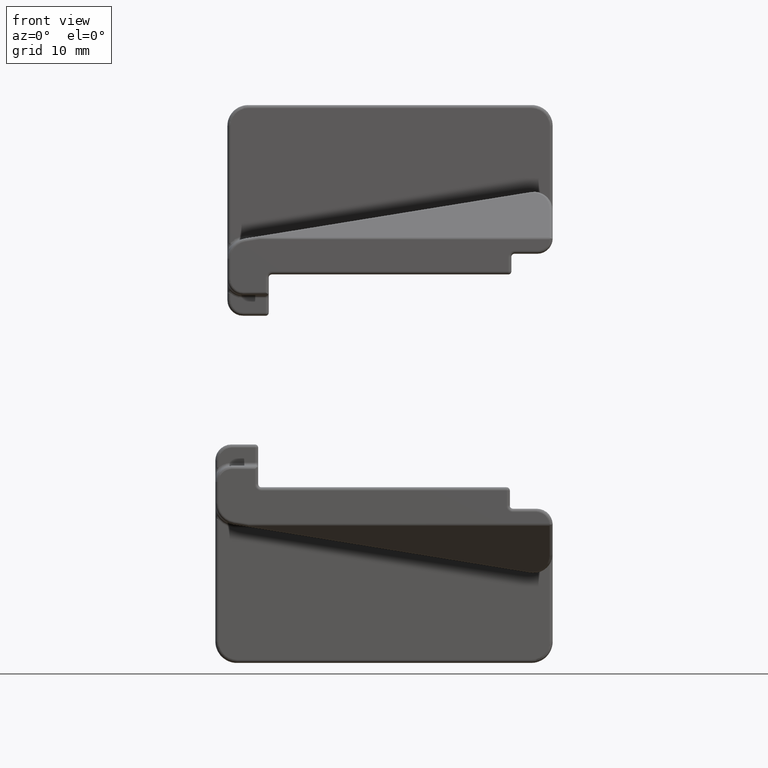
[diagram: clean part render]
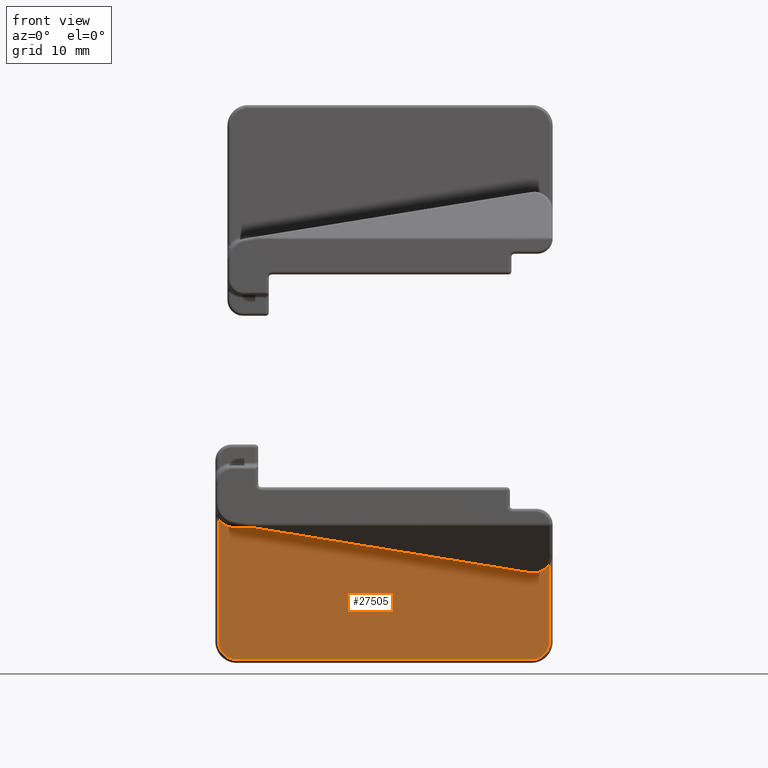
[diagram: same view with one face highlighted and labeled with its STEP entity id]
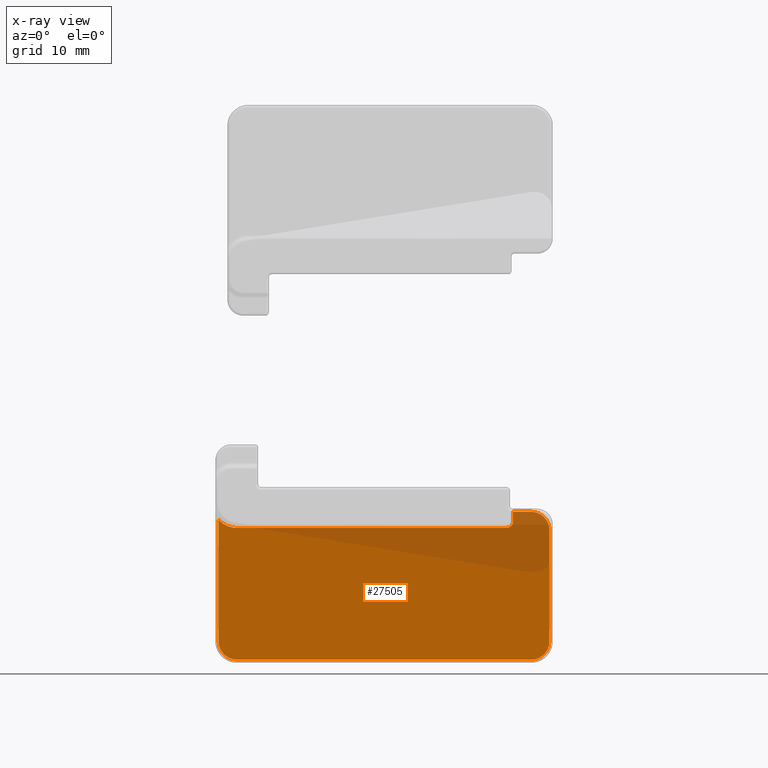
[diagram: x-ray of the same camera — body ghosted, the highlighted face saturated]
A machine part, front view. The second image highlights one B-rep face of the part: STEP entity #27505.
The next image is the same camera in x-ray: the body ghosted, the highlighted face saturated — about 17% of this face is hidden behind the body in this view.
In plain terms, the highlighted planar face has unit normal (-0, 1, -0).
Its self-contained STEP definition (entity closure, byte-faithful):
#59 = CARTESIAN_POINT ( 'NONE',  ( -85.09061913124605800, 47.56520514981311000, -64.85825493301342700 ) ) ;
#116 = EDGE_CURVE ( 'NONE', #4298, #28897, #19156, .T. ) ;
#157 = CARTESIAN_POINT ( 'NONE',  ( -85.41079178492123000, 47.56520517106420700, -65.19786147839050700 ) ) ;
#263 = VECTOR ( 'NONE', #12249, 1000.000000000000000 ) ;
#265 = CARTESIAN_POINT ( 'NONE',  ( -85.69136210871427300, 47.56520518857271200, -65.38312108724174700 ) ) ;
#341 = ORIENTED_EDGE ( 'NONE', *, *, #12700, .F. ) ;
#371 = CARTESIAN_POINT ( 'NONE',  ( -86.11326690694585300, 47.56520515783549300, -65.53784569569337700 ) ) ;
#405 = AXIS2_PLACEMENT_3D ( 'NONE', #1677, #18391, #4103 ) ;
#606 = CARTESIAN_POINT ( 'NONE',  ( -114.5239245589577700, 47.56520507635465100, -65.53763349077704000 ) ) ;
#707 = CARTESIAN_POINT ( 'NONE',  ( -115.3554042313149200, 47.56520507566472800, -65.08208309671115900 ) ) ;
#810 = CARTESIAN_POINT ( 'NONE',  ( -115.5972100838518800, 47.56520529754530500, -64.78164061291809600 ) ) ;
#822 = VERTEX_POINT ( 'NONE', #28807 ) ;
#908 = CARTESIAN_POINT ( 'NONE',  ( -115.7730192352197600, 47.56520508610490300, -64.41062160374940500 ) ) ;
#1019 = B_SPLINE_CURVE_WITH_KNOTS ( 'NONE', 3,
 ( #4867, #19145, #7321, #23917, #9721, #26318, #12151, #28770, #14494, #59, #16820, #2500, #19240, #4967, #21609, #7420, #24023, #9817, #26419, #12262, #28865, #14589, #157, #16920, #2591, #19342, #5077, #21697, #7509, #24127, #9909, #26520, #12359, #28960, #14685, #265, #17019, #2706, #19438, #5178, #21807, #7613, #24239, #10011, #26622, #12455, #29057, #14787, #371, #17113, #2812, #19547 ),
 .UNSPECIFIED., .F., .F.,
 ( 4, 2, 2, 2, 2, 2, 1, 1, 1, 1, 2, 2, 2, 2, 2, 1, 2, 2, 2, 1, 2, 2, 2, 2, 2, 2, 1, 1, 2, 4 ),
 ( 0.0000000000000000000, 0.1249999999987928300, 0.1874999999981892300, 0.2499999999975856500, 0.3749999999963645200, 0.4374999999957539000, 0.4687499999954544700, 0.4843749999953097500, 0.4921874999952322000, 0.4960937499951881800, 0.4980468749951660900, 0.4999999999951440000, 0.5624999999955190300, 0.5703124999955622200, 0.5781249999956052900, 0.5937499999957002200, 0.6249999999958868500, 0.6406249999959908700, 0.6445312499960147400, 0.6484374999960386100, 0.6562499999960974600, 0.6874999999963397100, 0.7499999999968343100, 0.7812499999970816700, 0.7851562499971224100, 0.7890624999971632700, 0.7968749999972600800, 0.8124999999974740200, 0.8749999999983160100, 1.000000000000000000 ),
 .UNSPECIFIED. ) ;
#1375 = DIRECTION ( 'NONE',  ( 0.0000000000000000000, 0.0000000000000000000, 1.000000000000000000 ) ) ;
#1378 = CARTESIAN_POINT ( 'NONE',  ( -85.74202961035679500, 47.56520516209154400, -51.86095275907231200 ) ) ;
#1431 = DIRECTION ( 'NONE',  ( 0.9870745525982588300, 0.0000000000000000000, -0.1602617471917339700 ) ) ;
#1482 = CARTESIAN_POINT ( 'NONE',  ( -85.23563104423415400, 47.56520504921714800, -52.23447866862385100 ) ) ;
#1599 = CARTESIAN_POINT ( 'NONE',  ( -85.01139370132911200, 47.56520525104075900, -52.53861296022482500 ) ) ;
#1677 = CARTESIAN_POINT ( 'NONE',  ( -114.2891290886186800, 47.56520507557525700, -52.60051073726586400 ) ) ;
#1704 = CARTESIAN_POINT ( 'NONE',  ( -84.85323768697945500, 47.56520509895901200, -52.89643762875896000 ) ) ;
#1780 = ORIENTED_EDGE ( 'NONE', *, *, #16103, .T. ) ;
#1894 = DIRECTION ( 'NONE',  ( 0.0000000000000000000, 0.0000000000000000000, 1.000000000000000000 ) ) ;
#2500 = CARTESIAN_POINT ( 'NONE',  ( -85.17934918512475000, 47.56520510275998200, -64.97143189718065100 ) ) ;
#2591 = CARTESIAN_POINT ( 'NONE',  ( -85.43580123714461600, 47.56520521144607000, -65.21770686579424100 ) ) ;
#2706 = CARTESIAN_POINT ( 'NONE',  ( -85.83664551648583100, 47.56520510587556300, -65.45180597223891500 ) ) ;
#2812 = CARTESIAN_POINT ( 'NONE',  ( -86.37884651886561500, 47.56520507557528500, -65.57807062696493000 ) ) ;
#3038 = CARTESIAN_POINT ( 'NONE',  ( -114.6792488385710300, 47.56520508526954700, -65.49532393897686700 ) ) ;
#3145 = CARTESIAN_POINT ( 'NONE',  ( -115.3603918401506300, 47.56520507557528500, -65.07710500160885700 ) ) ;
#3233 = VECTOR ( 'NONE', #1431, 1000.000000000000100 ) ;
#3247 = CARTESIAN_POINT ( 'NONE',  ( -115.6084326712006000, 47.56520528005182800, -64.76353419017503700 ) ) ;
#3347 = CARTESIAN_POINT ( 'NONE',  ( -115.7748036427372300, 47.56520508790543300, -64.40529322591581300 ) ) ;
#3433 = CIRCLE ( 'NONE', #17127, 0.6035999999999819300 ) ;
#3819 = CARTESIAN_POINT ( 'NONE',  ( -85.49565342320963200, 47.56520515009972900, -52.00973167892012600 ) ) ;
#3912 = CARTESIAN_POINT ( 'NONE',  ( -85.15604753482986700, 47.56520517106337600, -52.32990414256617100 ) ) ;
#4025 = CARTESIAN_POINT ( 'NONE',  ( -84.97078751019327600, 47.56520518857270500, -52.61047498325754600 ) ) ;
#4103 = DIRECTION ( 'NONE',  ( 0.0000000000000000000, 0.0000000000000000000, 1.000000000000000000 ) ) ;
#4132 = CARTESIAN_POINT ( 'NONE',  ( -84.81606289874993400, 47.56520515783545700, -53.03237978706452800 ) ) ;
#4298 = VERTEX_POINT ( 'NONE', #17713 ) ;
#4867 = CARTESIAN_POINT ( 'NONE',  ( -84.77599785715634100, 47.56520507557527100, -63.86771073726553300 ) ) ;
#4967 = CARTESIAN_POINT ( 'NONE',  ( -85.24173790019503400, 47.56520507931411100, -65.04101354351007600 ) ) ;
#5077 = CARTESIAN_POINT ( 'NONE',  ( -85.49007896449859300, 47.56520529185763000, -65.25887081759334800 ) ) ;
#5146 = ORIENTED_EDGE ( 'NONE', *, *, #17590, .F. ) ;
#5178 = CARTESIAN_POINT ( 'NONE',  ( -85.93044695492179100, 47.56520508680058900, -65.48525179463115400 ) ) ;
#5319 = ORIENTED_EDGE ( 'NONE', *, *, #25111, .F. ) ;
#5342 = CARTESIAN_POINT ( 'NONE',  ( -88.19639785715634200, 47.56520507557526400, -52.90231073726553000 ) ) ;
#5394 = DIRECTION ( 'NONE',  ( -0.0000000000000000000, -1.123699740989531100E-016, -1.000000000000000000 ) ) ;
#5513 = CARTESIAN_POINT ( 'NONE',  ( -114.8953659352826800, 47.56520516180526700, -65.41206834280586700 ) ) ;
#5629 = CARTESIAN_POINT ( 'NONE',  ( -115.4017675169201600, 47.56520504922042400, -65.03853953017711800 ) ) ;
#5728 = CARTESIAN_POINT ( 'NONE',  ( -115.6260020132478400, 47.56520525104075900, -64.73440851385777300 ) ) ;
#5829 = CARTESIAN_POINT ( 'NONE',  ( -84.77599785715634100, 47.56520507557526400, -52.90231073726553000 ) ) ;
#5832 = CARTESIAN_POINT ( 'NONE',  ( -115.7841580273373700, 47.56520509895900500, -64.37658384578205100 ) ) ;
#5971 = DIRECTION ( 'NONE',  ( 0.0000000000000000000, 1.123699740989531100E-016, 1.000000000000000000 ) ) ;
#5982 = ORIENTED_EDGE ( 'NONE', *, *, #21611, .F. ) ;
#6188 = CARTESIAN_POINT ( 'NONE',  ( -86.37888934310738900, 47.56520507557526400, -51.69517638808132200 ) ) ;
#6291 = CARTESIAN_POINT ( 'NONE',  ( -85.38247653138677200, 47.56520510286741700, -52.09846187089495100 ) ) ;
#6342 = VERTEX_POINT ( 'NONE', #13158 ) ;
#6345 = VECTOR ( 'NONE', #5394, 1000.000000000000000 ) ;
#6402 = CARTESIAN_POINT ( 'NONE',  ( -85.13620172823873100, 47.56520521144607000, -52.35491411774965800 ) ) ;
#6509 = CARTESIAN_POINT ( 'NONE',  ( -84.90210262679401900, 47.56520510587554900, -52.75575838567418400 ) ) ;
#6623 = CARTESIAN_POINT ( 'NONE',  ( -84.77583796747576600, 47.56520507557526400, -53.29795939897604000 ) ) ;
#7085 = VERTEX_POINT ( 'NONE', #13491 ) ;
#7282 = CIRCLE ( 'NONE', #30304, 2.313799999999956100 ) ;
#7297 = EDGE_LOOP ( 'NONE', ( #27550, #341, #28818, #15101, #13859, #5319, #7904, #12454, #1780, #30284, #22987, #5146, #5982 ) ) ;
#7314 = CARTESIAN_POINT ( 'NONE',  ( -86.48619785715632700, 47.56520507557526400, -51.69511073726551600 ) ) ;
#7321 = CARTESIAN_POINT ( 'NONE',  ( -84.78620705888545200, 47.56520508428882000, -64.08231301596885000 ) ) ;
#7420 = CARTESIAN_POINT ( 'NONE',  ( -85.26802730539381500, 47.56520507582418100, -65.06809082732866000 ) ) ;
#7509 = CARTESIAN_POINT ( 'NONE',  ( -85.56068085969872100, 47.56520530450869400, -65.30634507333577700 ) ) ;
#7590 = VERTEX_POINT ( 'NONE', #27730 ) ;
#7613 = CARTESIAN_POINT ( 'NONE',  ( -85.94296580053800500, 47.56520508606065100, -65.48942442152842600 ) ) ;
#7628 = CIRCLE ( 'NONE', #405, 0.6035999999996697300 ) ;
#7904 = ORIENTED_EDGE ( 'NONE', *, *, #21393, .F. ) ;
#7947 = CARTESIAN_POINT ( 'NONE',  ( -115.1417420528978800, 47.56520514981311000, -65.26328946317428900 ) ) ;
#8060 = CARTESIAN_POINT ( 'NONE',  ( -115.4813485988289600, 47.56520517106420700, -64.94311680881337200 ) ) ;
#8162 = CARTESIAN_POINT ( 'NONE',  ( -115.6666082049125500, 47.56520518857271900, -64.66254648980621800 ) ) ;
#8260 = CARTESIAN_POINT ( 'NONE',  ( -115.8213328155783900, 47.56520515783548600, -64.24064168747611300 ) ) ;
#8418 = EDGE_CURVE ( 'NONE', #29898, #9692, #9383, .T. ) ;
#8484 = CARTESIAN_POINT ( 'NONE',  ( -115.8613978571563300, 47.56520507557526400, -52.90231073726553000 ) ) ;
#8700 = CARTESIAN_POINT ( 'NONE',  ( -85.31289498064175800, 47.56520507932902600, -52.16085070678086300 ) ) ;
#8816 = CARTESIAN_POINT ( 'NONE',  ( -85.09503777502845900, 47.56520529185763700, -52.40919184707649200 ) ) ;
#8836 = CARTESIAN_POINT ( 'NONE',  ( -114.2891290886186800, 47.56520507557526400, -53.20411073726552300 ) ) ;
#8919 = CARTESIAN_POINT ( 'NONE',  ( -84.86865680194304700, 47.56520508680057400, -52.84955982875206400 ) ) ;
#9151 = CARTESIAN_POINT ( 'NONE',  ( -114.3858630792236100, 47.56520507557526400, -53.19630893721383600 ) ) ;
#9383 = LINE ( 'NONE', #8484, #263 ) ;
#9683 = LINE ( 'NONE', #18144, #3233 ) ;
#9692 = VERTEX_POINT ( 'NONE', #11061 ) ;
#9703 = DIRECTION ( 'NONE',  ( -0.0000000000000000000, 1.000000000000000000, -1.123699740989531100E-016 ) ) ;
#9721 = CARTESIAN_POINT ( 'NONE',  ( -84.82876776238387600, 47.56520507256401200, -64.29267662479777800 ) ) ;
#9817 = CARTESIAN_POINT ( 'NONE',  ( -85.27436165227295800, 47.56520507559343300, -65.07446394957084100 ) ) ;
#9909 = CARTESIAN_POINT ( 'NONE',  ( -85.58662439494521800, 47.56520528402881400, -65.32262532499829900 ) ) ;
#10010 = EDGE_CURVE ( 'NONE', #7085, #822, #18740, .T. ) ;
#10011 = CARTESIAN_POINT ( 'NONE',  ( -85.94375523268456600, 47.56520508623377500, -65.48968929887854500 ) ) ;
#10339 = CARTESIAN_POINT ( 'NONE',  ( -115.2549190170678900, 47.56520510275998200, -65.17455940929626500 ) ) ;
#10445 = CARTESIAN_POINT ( 'NONE',  ( -115.5011939855245400, 47.56520521144607000, -64.91810735748342200 ) ) ;
#10534 = CARTESIAN_POINT ( 'NONE',  ( -115.7352930887416100, 47.56520510587555600, -64.51726308596236900 ) ) ;
#10636 = CARTESIAN_POINT ( 'NONE',  ( -115.8615577468506100, 47.56520507557527100, -63.97506207555667100 ) ) ;
#10888 = CARTESIAN_POINT ( 'NONE',  ( -86.48619785715634100, 47.56520507557526400, -65.57791073726551200 ) ) ;
#11011 = CARTESIAN_POINT ( 'NONE',  ( -86.27159562005246600, 47.56520508436628300, -51.70532025123731000 ) ) ;
#11061 = CARTESIAN_POINT ( 'NONE',  ( -115.8613978571563200, 47.56520507557526400, -52.44879923577939000 ) ) ;
#11115 = CARTESIAN_POINT ( 'NONE',  ( -85.28581774844042200, 47.56520507582516200, -52.18714016671839300 ) ) ;
#11222 = CARTESIAN_POINT ( 'NONE',  ( -85.04756352016936200, 47.56520530450867300, -52.47979374123103500 ) ) ;
#11315 = CARTESIAN_POINT ( 'NONE',  ( -84.86448417319796500, 47.56520508606062200, -52.86207867974836500 ) ) ;
#11379 = VERTEX_POINT ( 'NONE', #9151 ) ;
#11655 = VERTEX_POINT ( 'NONE', #7314 ) ;
#12151 = CARTESIAN_POINT ( 'NONE',  ( -84.87763005565486200, 47.56520510625529900, -64.45173126419869900 ) ) ;
#12249 = DIRECTION ( 'NONE',  ( 0.0000000000000000000, 1.123699740989531100E-016, 1.000000000000000000 ) ) ;
#12262 = CARTESIAN_POINT ( 'NONE',  ( -85.28011174543949800, 47.56520507557527800, -65.08020584497907600 ) ) ;
#12359 = CARTESIAN_POINT ( 'NONE',  ( -85.60209312265448000, 47.56520526818420100, -65.33207284589518300 ) ) ;
#12402 = VECTOR ( 'NONE', #16283, 1000.000000000000000 ) ;
#12454 = ORIENTED_EDGE ( 'NONE', *, *, #22739, .F. ) ;
#12455 = CARTESIAN_POINT ( 'NONE',  ( -85.95817263583977300, 47.56520509138808000, -65.49447244471902300 ) ) ;
#12700 = EDGE_CURVE ( 'NONE', #11655, #4298, #24331, .T. ) ;
#12773 = CARTESIAN_POINT ( 'NONE',  ( -115.3245006633994900, 47.56520507931410400, -65.11217069422654900 ) ) ;
#12829 = LINE ( 'NONE', #14375, #19074 ) ;
#12870 = CARTESIAN_POINT ( 'NONE',  ( -115.5423579367343100, 47.56520529185763000, -64.86382963096234300 ) ) ;
#12985 = CARTESIAN_POINT ( 'NONE',  ( -115.7687389129414900, 47.56520508680057400, -64.42346164411675600 ) ) ;
#13045 = VERTEX_POINT ( 'NONE', #10888 ) ;
#13158 = CARTESIAN_POINT ( 'NONE',  ( -114.5220114878086400, 47.56520507557527100, -53.17420383706736700 ) ) ;
#13175 = CARTESIAN_POINT ( 'NONE',  ( -114.1511978571563500, 47.56520507557527100, -65.57791073726552600 ) ) ;
#13415 = CARTESIAN_POINT ( 'NONE',  ( -86.06123201278568000, 47.56520507254865700, -51.74788080118277400 ) ) ;
#13491 = CARTESIAN_POINT ( 'NONE',  ( -88.19639785715635600, 47.56520507557526400, -52.60051073726553000 ) ) ;
#13511 = CARTESIAN_POINT ( 'NONE',  ( -85.27944463944328400, 47.56520507559348900, -52.19347452698756500 ) ) ;
#13606 = CARTESIAN_POINT ( 'NONE',  ( -85.03128326933436700, 47.56520528402880600, -52.50573727519471800 ) ) ;
#13718 = CARTESIAN_POINT ( 'NONE',  ( -84.86421929547115900, 47.56520508623376000, -52.86286811301585000 ) ) ;
#13859 = ORIENTED_EDGE ( 'NONE', *, *, #24241, .F. ) ;
#13953 = FACE_OUTER_BOUND ( 'NONE', #7297, .T. ) ;
#14375 = CARTESIAN_POINT ( 'NONE',  ( -84.47419785715634100, 47.56520507557526400, -53.20411073726552300 ) ) ;
#14494 = CARTESIAN_POINT ( 'NONE',  ( -84.99549925351679700, 47.56520518214936300, -64.71429611798151900 ) ) ;
#14573 = CARTESIAN_POINT ( 'NONE',  ( -84.47419785715634100, 47.56520507557526400, -51.69511073726552300 ) ) ;
#14589 = CARTESIAN_POINT ( 'NONE',  ( -85.40066370695208800, 47.56520515679808600, -65.18957003293938600 ) ) ;
#14685 = CARTESIAN_POINT ( 'NONE',  ( -85.63637452903721200, 47.56520523576712400, -65.35223343124199900 ) ) ;
#14787 = CARTESIAN_POINT ( 'NONE',  ( -86.04794748601294400, 47.56520513140805000, -65.52214691758493400 ) ) ;
#14889 = CARTESIAN_POINT ( 'NONE',  ( -114.1511978571563500, 47.56520507557527100, -65.57791073726552600 ) ) ;
#14990 = CARTESIAN_POINT ( 'NONE',  ( -114.3658001358545800, 47.56520508428881300, -65.56770153553635800 ) ) ;
#15095 = CARTESIAN_POINT ( 'NONE',  ( -115.3515779472191000, 47.56520507582417400, -65.08588128902802300 ) ) ;
#15097 = CARTESIAN_POINT ( 'NONE',  ( -115.8613978571563300, 47.56520507557526400, -63.86771073726553300 ) ) ;
#15101 = ORIENTED_EDGE ( 'NONE', *, *, #10010, .F. ) ;
#15203 = CARTESIAN_POINT ( 'NONE',  ( -115.5898321928462900, 47.56520530450870200, -64.79322773532014400 ) ) ;
#15300 = CARTESIAN_POINT ( 'NONE',  ( -115.7729115411957000, 47.56520508606064400, -64.41094279455104800 ) ) ;
#15723 = DIRECTION ( 'NONE',  ( 0.0000000000000000000, 1.000000000000000000, -0.0000000000000000000 ) ) ;
#15728 = CARTESIAN_POINT ( 'NONE',  ( -85.90217727651261700, 47.56520510632227400, -51.79674278113370200 ) ) ;
#15838 = CARTESIAN_POINT ( 'NONE',  ( -85.27370547684182600, 47.56520507557527100, -52.19922190601083400 ) ) ;
#15932 = CARTESIAN_POINT ( 'NONE',  ( -85.02183574898266700, 47.56520526818417900, -52.52120600200930800 ) ) ;
#16041 = CARTESIAN_POINT ( 'NONE',  ( -84.85943614970537400, 47.56520509138805900, -52.87728551595672900 ) ) ;
#16103 = EDGE_CURVE ( 'NONE', #6342, #9692, #7282, .T. ) ;
#16232 = DIRECTION ( 'NONE',  ( -0.0000000000000000000, -1.000000000000000000, -0.0000000000000000000 ) ) ;
#16283 = DIRECTION ( 'NONE',  ( -1.000000000000000000, -0.0000000000000000000, 0.0000000000000000000 ) ) ;
#16820 = CARTESIAN_POINT ( 'NONE',  ( -85.12475753706600300, 47.56520513059916800, -64.90463339155144200 ) ) ;
#16920 = CARTESIAN_POINT ( 'NONE',  ( -85.43240868610753600, 47.56520520549997900, -65.21510225631361400 ) ) ;
#17019 = CARTESIAN_POINT ( 'NONE',  ( -85.73129023108066300, 47.56520516260594900, -65.40302377417924600 ) ) ;
#17113 = CARTESIAN_POINT ( 'NONE',  ( -86.27146692806240900, 47.56520516741107900, -65.56800720699162400 ) ) ;
#17127 = AXIS2_PLACEMENT_3D ( 'NONE', #30518, #16232, #1894 ) ;
#17322 = EDGE_CURVE ( 'NONE', #24790, #29898, #23966, .T. ) ;
#17336 = CARTESIAN_POINT ( 'NONE',  ( -114.5761637446780700, 47.56520507256400500, -65.52514083203796200 ) ) ;
#17430 = CARTESIAN_POINT ( 'NONE',  ( -115.3579510694615400, 47.56520507559343300, -65.07954694214890900 ) ) ;
#17531 = CARTESIAN_POINT ( 'NONE',  ( -115.6061124448542500, 47.56520528402883500, -64.76728419953198600 ) ) ;
#17590 = EDGE_CURVE ( 'NONE', #13045, #24790, #19386, .T. ) ;
#17635 = CARTESIAN_POINT ( 'NONE',  ( -115.7731764188224000, 47.56520508623376700, -64.41015336158167800 ) ) ;
#17713 = CARTESIAN_POINT ( 'NONE',  ( -84.77599785715634100, 47.56520507557526400, -53.40531073726553000 ) ) ;
#18096 = CARTESIAN_POINT ( 'NONE',  ( -85.63961224037200300, 47.56520518254333800, -51.91461172617047700 ) ) ;
#18144 = CARTESIAN_POINT ( 'NONE',  ( -114.5220114878086400, 47.56520507557526400, -53.17420383706736700 ) ) ;
#18198 = CARTESIAN_POINT ( 'NONE',  ( -85.16433924826861800, 47.56520515679687100, -52.31977574911412900 ) ) ;
#18235 = VECTOR ( 'NONE', #5971, 1000.000000000000000 ) ;
#18308 = CARTESIAN_POINT ( 'NONE',  ( -85.00167516470989400, 47.56520523576711000, -52.55548740648698900 ) ) ;
#18391 = DIRECTION ( 'NONE',  ( -0.0000000000000000000, -1.000000000000000000, -0.0000000000000000000 ) ) ;
#18419 = CARTESIAN_POINT ( 'NONE',  ( -84.83176167685289200, 47.56520513140800000, -52.96706036613222300 ) ) ;
#18740 = LINE ( 'NONE', #5342, #18235 ) ;
#19074 = VECTOR ( 'NONE', #28639, 1000.000000000000000 ) ;
#19145 = CARTESIAN_POINT ( 'NONE',  ( -84.77606327918346100, 47.56520507557528500, -63.97501925028589700 ) ) ;
#19156 = LINE ( 'NONE', #5829, #6345 ) ;
#19240 = CARTESIAN_POINT ( 'NONE',  ( -85.20749044424667300, 47.56520508927708600, -65.00413926972414900 ) ) ;
#19342 = CARTESIAN_POINT ( 'NONE',  ( -85.45394142680244400, 47.56520523982619900, -65.23172811984603900 ) ) ;
#19386 = LINE ( 'NONE', #30574, #12402 ) ;
#19438 = CARTESIAN_POINT ( 'NONE',  ( -85.88745811469598800, 47.56520509489941200, -65.47008172342096100 ) ) ;
#19547 = CARTESIAN_POINT ( 'NONE',  ( -86.48619785715634100, 47.56520507557526400, -65.57791073726551200 ) ) ;
#19755 = CARTESIAN_POINT ( 'NONE',  ( -114.7352183840774700, 47.56520510625527700, -65.47627853876625200 ) ) ;
#19856 = CARTESIAN_POINT ( 'NONE',  ( -115.3636929684526400, 47.56520507557527100, -65.07379684539213800 ) ) ;
#19975 = CARTESIAN_POINT ( 'NONE',  ( -115.6155599654397000, 47.56520526818420100, -64.75181547233557900 ) ) ;
#20071 = CARTESIAN_POINT ( 'NONE',  ( -115.7779595646091600, 47.56520509138807300, -64.39573595858391300 ) ) ;
#20522 = CARTESIAN_POINT ( 'NONE',  ( -85.44927498029956300, 47.56520513081409300, -52.04387013059013600 ) ) ;
#20625 = CARTESIAN_POINT ( 'NONE',  ( -85.13880617261962400, 47.56520520550026300, -52.35152177107653400 ) ) ;
#20721 = CARTESIAN_POINT ( 'NONE',  ( -84.95088482390950400, 47.56520516260592800, -52.65040310381398600 ) ) ;
#20761 = AXIS2_PLACEMENT_3D ( 'NONE', #23904, #9703, #26305 ) ;
#20823 = CARTESIAN_POINT ( 'NONE',  ( -84.78590138745671800, 47.56520516741104400, -53.19057980817767400 ) ) ;
#21393 = EDGE_CURVE ( 'NONE', #11379, #26108, #7628, .T. ) ;
#21609 = CARTESIAN_POINT ( 'NONE',  ( -85.25920726733268400, 47.56520507655041300, -65.05912077738945200 ) ) ;
#21611 = EDGE_CURVE ( 'NONE', #28897, #13045, #1019, .T. ) ;
#21697 = CARTESIAN_POINT ( 'NONE',  ( -85.52565005364689900, 47.56520531207324600, -65.28340974286292900 ) ) ;
#21807 = CARTESIAN_POINT ( 'NONE',  ( -85.93929192605226300, 47.56520508584083000, -65.48819185944995500 ) ) ;
#22130 = CARTESIAN_POINT ( 'NONE',  ( -114.9977832378632600, 47.56520518214934900, -65.35840934090312300 ) ) ;
#22230 = CARTESIAN_POINT ( 'NONE',  ( -115.4730571537298500, 47.56520515679806500, -64.95324488636602200 ) ) ;
#22338 = CARTESIAN_POINT ( 'NONE',  ( -115.6357205499994300, 47.56520523576712400, -64.71753406735069800 ) ) ;
#22424 = CARTESIAN_POINT ( 'NONE',  ( -115.8056340374714100, 47.56520513140803500, -64.30596110840936300 ) ) ;
#22739 = EDGE_CURVE ( 'NONE', #6342, #11379, #9683, .T. ) ;
#22785 = CARTESIAN_POINT ( 'NONE',  ( -86.48619785715632700, 47.56520507557526400, -51.69511073726551600 ) ) ;
#22893 = CARTESIAN_POINT ( 'NONE',  ( -85.34976919549683300, 47.56520508933164800, -52.12660318197905000 ) ) ;
#22987 = ORIENTED_EDGE ( 'NONE', *, *, #17322, .F. ) ;
#22997 = CARTESIAN_POINT ( 'NONE',  ( -85.12218047359456800, 47.56520523982618400, -52.37305430819417000 ) ) ;
#23093 = CARTESIAN_POINT ( 'NONE',  ( -84.88382687496810800, 47.56520509489939700, -52.80657098406636200 ) ) ;
#23206 = CARTESIAN_POINT ( 'NONE',  ( -84.77599785715634100, 47.56520507557526400, -53.40531073726553000 ) ) ;
#23904 = CARTESIAN_POINT ( 'NONE',  ( -84.47419785715634100, 47.56520507557526400, -52.90231073726553000 ) ) ;
#23917 = CARTESIAN_POINT ( 'NONE',  ( -84.81627510364477000, 47.56520507635464400, -64.24043743907610300 ) ) ;
#23966 = B_SPLINE_CURVE_WITH_KNOTS ( 'NONE', 3,
 ( #14889, #29261, #14990, #606, #17336, #3038, #19755, #5513, #22130, #7947, #24561, #10339, #26926, #12773, #29363, #15095, #707, #17430, #3145, #19856, #5629, #22230, #8060, #24665, #10445, #27037, #12870, #29459, #15203, #810, #17531, #3247, #19975, #5728, #22338, #8162, #24774, #10534, #27138, #12985, #29547, #15300, #908, #17635, #3347, #20071, #5832, #22424, #8260, #24866, #10636, #27233 ),
 .UNSPECIFIED., .F., .F.,
 ( 4, 2, 2, 2, 2, 2, 1, 1, 1, 1, 2, 2, 2, 2, 2, 1, 2, 2, 2, 1, 2, 2, 2, 2, 2, 2, 1, 1, 2, 4 ),
 ( 0.0000000000000000000, 0.1249999999978014800, 0.1874999999967101600, 0.2499999999956188400, 0.3749999999934305300, 0.4374999999923385200, 0.4687499999917972800, 0.4843749999915317700, 0.4921874999913937700, 0.4960937499913194400, 0.4980468749912822500, 0.4999999999912450000, 0.5624999999923583300, 0.5703124999924952300, 0.5781249999926321200, 0.5937499999929060100, 0.6249999999934536800, 0.6406249999937317900, 0.6445312499937991800, 0.6484374999938666800, 0.6562499999940125700, 0.6874999999945836700, 0.7499999999957206500, 0.7812499999962843100, 0.7851562499963500300, 0.7890624999964156400, 0.7968749999965418800, 0.8124999999967992300, 0.8749999999978660400, 1.000000000000000000 ),
 .UNSPECIFIED. ) ;
#24023 = CARTESIAN_POINT ( 'NONE',  ( -85.27182549771069400, 47.56520507566472100, -65.07191711142432700 ) ) ;
#24127 = CARTESIAN_POINT ( 'NONE',  ( -85.57226798189741100, 47.56520529754531200, -65.31372296420592200 ) ) ;
#24239 = CARTESIAN_POINT ( 'NONE',  ( -85.94328699107052200, 47.56520508610491800, -65.48953211546195500 ) ) ;
#24241 = EDGE_CURVE ( 'NONE', #7590, #7085, #3433, .T. ) ;
#24331 = B_SPLINE_CURVE_WITH_KNOTS ( 'NONE', 3,
 ( #22785, #6188, #11011, #27596, #13415, #30003, #15728, #1378, #18096, #3819, #20522, #6291, #22893, #8700, #25327, #11115, #27702, #13511, #30110, #15838, #1482, #18198, #3912, #20625, #6402, #22997, #8816, #25423, #11222, #27810, #13606, #30210, #15932, #1599, #18308, #4025, #20721, #6509, #23093, #8919, #25537, #11315, #27915, #13718, #30314, #16041, #1704, #18419, #4132, #20823, #6623, #23206 ),
 .UNSPECIFIED., .F., .F.,
 ( 4, 2, 2, 2, 2, 2, 1, 1, 1, 1, 2, 2, 2, 2, 2, 1, 2, 2, 2, 1, 2, 2, 2, 2, 2, 2, 1, 1, 2, 4 ),
 ( 0.0000000000000000000, 0.1249999999967500200, 0.1874999999951178500, 0.2499999999934856600, 0.3749999999902325400, 0.4374999999886058900, 0.4687499999877984800, 0.4843749999873946900, 0.4921874999871954600, 0.4960937499870932100, 0.4980468749870420900, 0.4999999999869909600, 0.5624999999890099000, 0.5703124999892604800, 0.5781249999895109500, 0.5937499999900064400, 0.6249999999910060800, 0.6406249999915059100, 0.6445312499916308100, 0.6484374999917557100, 0.6562499999920090600, 0.6874999999929988200, 0.7499999999949734700, 0.7812499999959723300, 0.7851562499960449400, 0.7890624999961176600, 0.7968749999962552200, 0.8124999999965429900, 0.8749999999976952900, 1.000000000000000000 ),
 .UNSPECIFIED. ) ;
#24561 = CARTESIAN_POINT ( 'NONE',  ( -115.1881205114369200, 47.56520513059916800, -65.22915105735458500 ) ) ;
#24665 = CARTESIAN_POINT ( 'NONE',  ( -115.4985893759846600, 47.56520520549997100, -64.92149990858712300 ) ) ;
#24774 = CARTESIAN_POINT ( 'NONE',  ( -115.6865108913715700, 47.56520516260595600, -64.62261836876761800 ) ) ;
#24790 = VERTEX_POINT ( 'NONE', #13175 ) ;
#24866 = CARTESIAN_POINT ( 'NONE',  ( -115.8514943268752400, 47.56520516741107200, -64.08244166635928700 ) ) ;
#25111 = EDGE_CURVE ( 'NONE', #26108, #7590, #12829, .T. ) ;
#25327 = CARTESIAN_POINT ( 'NONE',  ( -85.29478778045449900, 47.56520507655430000, -52.17832011013525300 ) ) ;
#25335 = EDGE_CURVE ( 'NONE', #822, #11655, #27238, .T. ) ;
#25423 = CARTESIAN_POINT ( 'NONE',  ( -85.07049884993487900, 47.56520531207326000, -52.44476293616327900 ) ) ;
#25537 = CARTESIAN_POINT ( 'NONE',  ( -84.86571673635815200, 47.56520508584079500, -52.85840480205730800 ) ) ;
#25945 = CARTESIAN_POINT ( 'NONE',  ( -84.77599785715634100, 47.56520507557527100, -63.86771073726553300 ) ) ;
#26108 = VERTEX_POINT ( 'NONE', #8836 ) ;
#26204 = PLANE ( 'NONE',  #20761 ) ;
#26305 = DIRECTION ( 'NONE',  ( 0.0000000000000000000, 1.123699740989531100E-016, 1.000000000000000000 ) ) ;
#26318 = CARTESIAN_POINT ( 'NONE',  ( -84.85858465544504300, 47.56520508526956800, -64.39576171869357800 ) ) ;
#26419 = CARTESIAN_POINT ( 'NONE',  ( -85.27680359292523300, 47.56520507557528500, -65.07690472037177200 ) ) ;
#26500 = VECTOR ( 'NONE', #28943, 1000.000000000000000 ) ;
#26520 = CARTESIAN_POINT ( 'NONE',  ( -85.59037440432281600, 47.56520528005181300, -65.32494555135903600 ) ) ;
#26622 = CARTESIAN_POINT ( 'NONE',  ( -85.94861536850803000, 47.56520508790543300, -65.49131652284663100 ) ) ;
#26926 = CARTESIAN_POINT ( 'NONE',  ( -115.2876263896123800, 47.56520508927709300, -65.14641815017461100 ) ) ;
#27037 = CARTESIAN_POINT ( 'NONE',  ( -115.5152152393288400, 47.56520523982620600, -64.89996716815781500 ) ) ;
#27138 = CARTESIAN_POINT ( 'NONE',  ( -115.7535688403977800, 47.56520509489941200, -64.46645048761735100 ) ) ;
#27233 = CARTESIAN_POINT ( 'NONE',  ( -115.8613978571563300, 47.56520507557526400, -63.86771073726553300 ) ) ;
#27238 = LINE ( 'NONE', #14573, #26500 ) ;
#27505 = ADVANCED_FACE ( 'NONE', ( #13953 ), #26204, .F. ) ;
#27550 = ORIENTED_EDGE ( 'NONE', *, *, #116, .F. ) ;
#27596 = CARTESIAN_POINT ( 'NONE',  ( -86.11347120508449400, 47.56520507637420500, -51.73538820721801600 ) ) ;
#27702 = CARTESIAN_POINT ( 'NONE',  ( -85.28199147226055700, 47.56520507566507000, -52.19093836705819500 ) ) ;
#27730 = CARTESIAN_POINT ( 'NONE',  ( -88.79999785715634200, 47.56520507557526400, -53.20411073726552300 ) ) ;
#27810 = CARTESIAN_POINT ( 'NONE',  ( -85.04018562962356500, 47.56520529754530500, -52.49138086294824000 ) ) ;
#27915 = CARTESIAN_POINT ( 'NONE',  ( -84.86437647914111400, 47.56520508610488200, -52.86239987064753600 ) ) ;
#28639 = DIRECTION ( 'NONE',  ( 1.000000000000000000, 0.0000000000000000000, -0.0000000000000000000 ) ) ;
#28770 = CARTESIAN_POINT ( 'NONE',  ( -84.94184025161411000, 47.56520516180530200, -64.61187881540222100 ) ) ;
#28807 = CARTESIAN_POINT ( 'NONE',  ( -88.19639785715634200, 47.56520507557526400, -51.69511073726552300 ) ) ;
#28818 = ORIENTED_EDGE ( 'NONE', *, *, #25335, .F. ) ;
#28865 = CARTESIAN_POINT ( 'NONE',  ( -85.31536905992786000, 47.56520504922044500, -65.11828039329677200 ) ) ;
#28897 = VERTEX_POINT ( 'NONE', #25945 ) ;
#28943 = DIRECTION ( 'NONE',  ( 1.000000000000000000, 0.0000000000000000000, -0.0000000000000000000 ) ) ;
#28960 = CARTESIAN_POINT ( 'NONE',  ( -85.61950008185536400, 47.56520525104075900, -65.34251489412747600 ) ) ;
#29057 = CARTESIAN_POINT ( 'NONE',  ( -85.97732474864132300, 47.56520509895901900, -65.50067090744812500 ) ) ;
#29261 = CARTESIAN_POINT ( 'NONE',  ( -114.2585063701741200, 47.56520507557527800, -65.57784531523842000 ) ) ;
#29363 = CARTESIAN_POINT ( 'NONE',  ( -115.3426078972795500, 47.56520507655040600, -65.09470132708904100 ) ) ;
#29459 = CARTESIAN_POINT ( 'NONE',  ( -115.5668968620779100, 47.56520531207326000, -64.82825854178761900 ) ) ;
#29547 = CARTESIAN_POINT ( 'NONE',  ( -115.7716789783229700, 47.56520508584080900, -64.41461667138972300 ) ) ;
#29898 = VERTEX_POINT ( 'NONE', #15097 ) ;
#30002 = CARTESIAN_POINT ( 'NONE',  ( -114.1511978571563800, 47.56520507557527100, -50.89031073726555800 ) ) ;
#30003 = CARTESIAN_POINT ( 'NONE',  ( -85.95814686785773500, 47.56520508526574500, -51.77769750062310500 ) ) ;
#30110 = CARTESIAN_POINT ( 'NONE',  ( -85.27700378881888800, 47.56520507557526400, -52.19591655801995200 ) ) ;
#30210 = CARTESIAN_POINT ( 'NONE',  ( -85.02896304311353500, 47.56520528005181300, -52.50948728434844500 ) ) ;
#30284 = ORIENTED_EDGE ( 'NONE', *, *, #8418, .F. ) ;
#30304 = AXIS2_PLACEMENT_3D ( 'NONE', #30002, #15723, #1375 ) ;
#30314 = CARTESIAN_POINT ( 'NONE',  ( -84.86259207157611700, 47.56520508790541900, -52.86772824862464400 ) ) ;
#30518 = CARTESIAN_POINT ( 'NONE',  ( -88.79999785715635600, 47.56520507557526400, -52.60051073726554400 ) ) ;
#30574 = CARTESIAN_POINT ( 'NONE',  ( -84.47419785715634100, 47.56520507557526400, -65.57791073726552600 ) ) ;